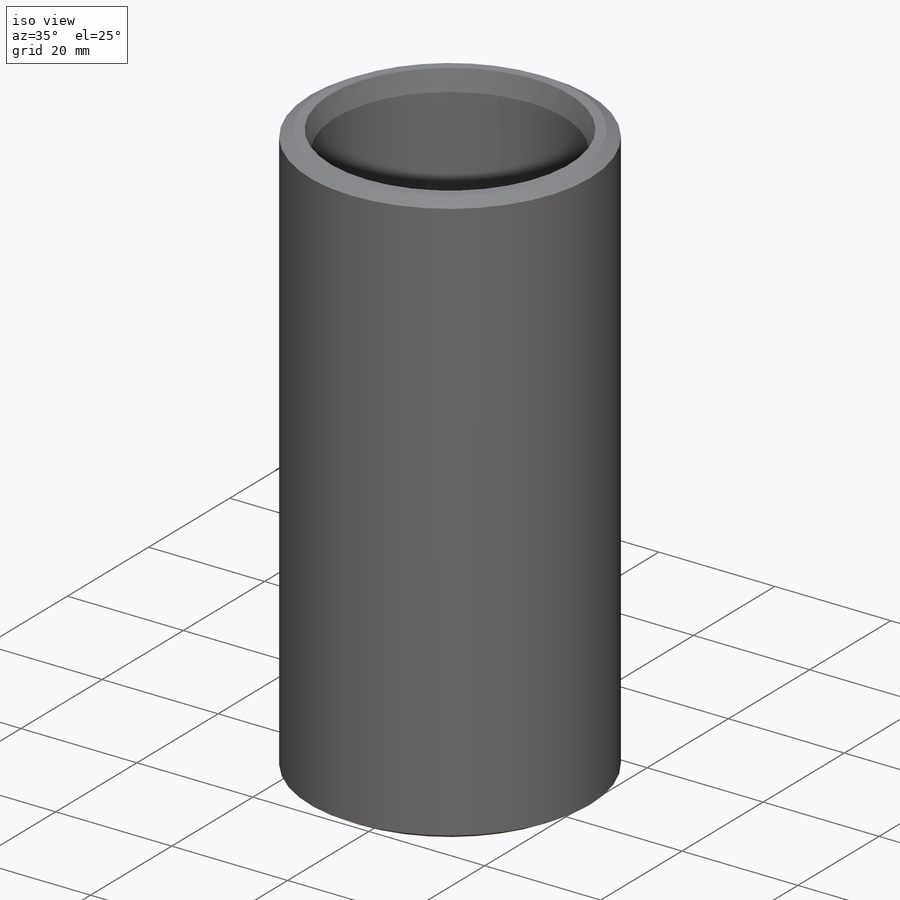
[diagram: iso view]
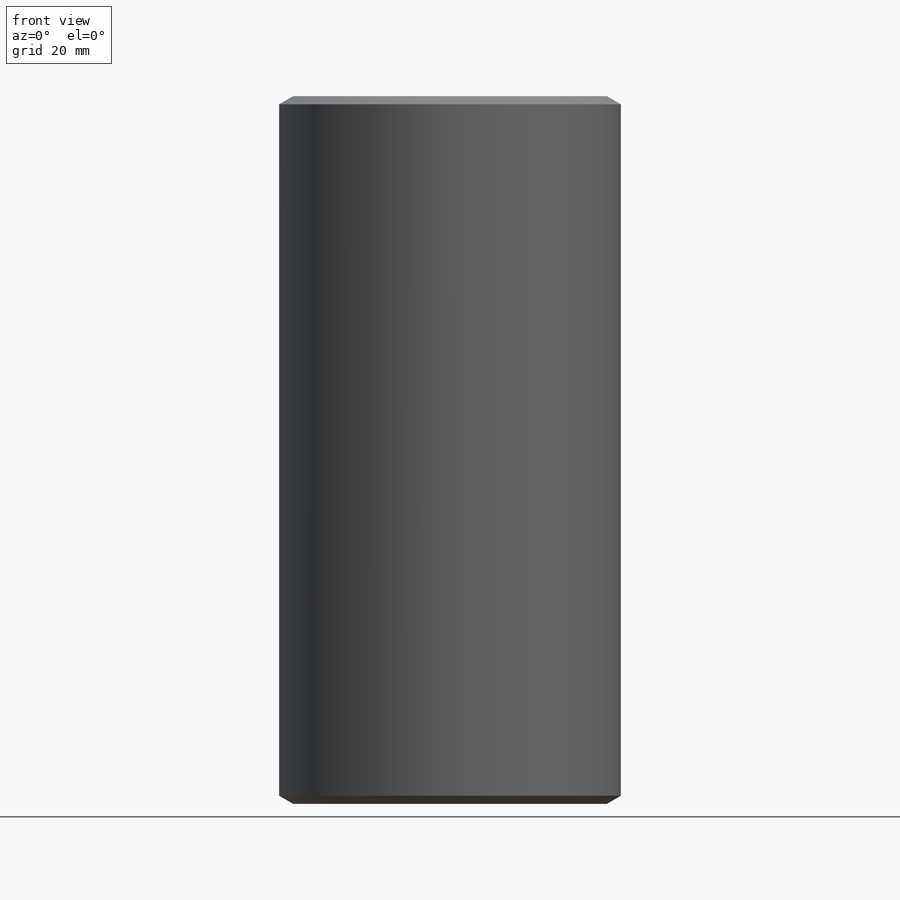
[diagram: front view]
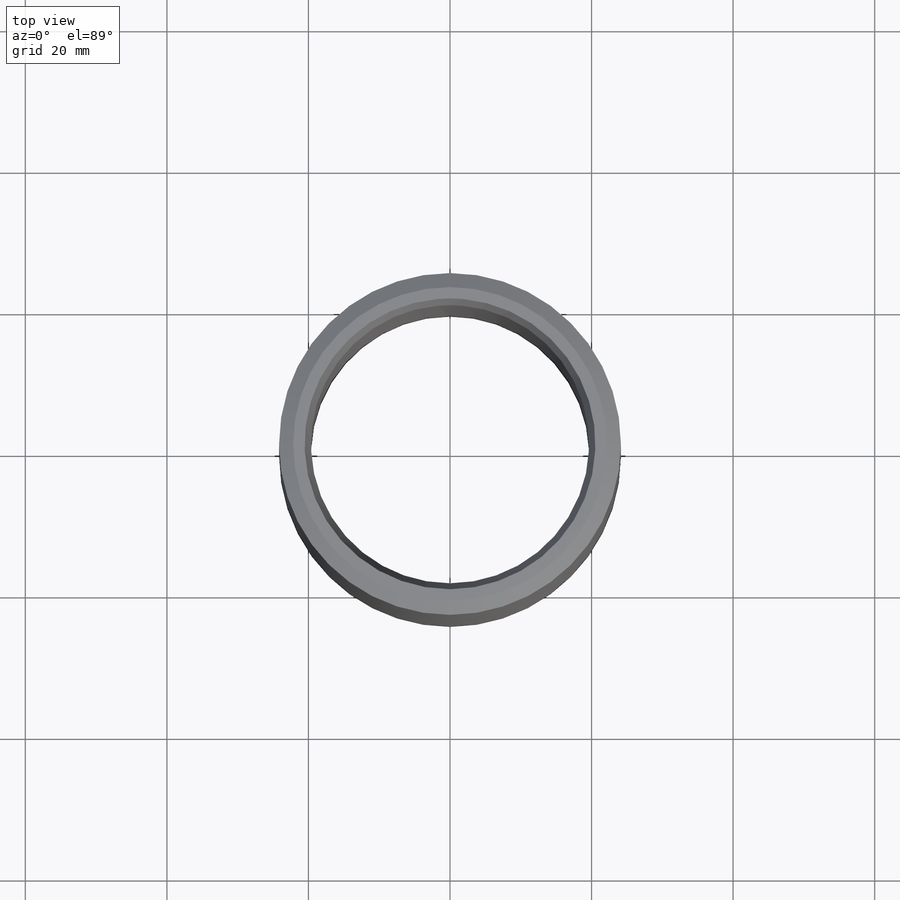
[diagram: top view]
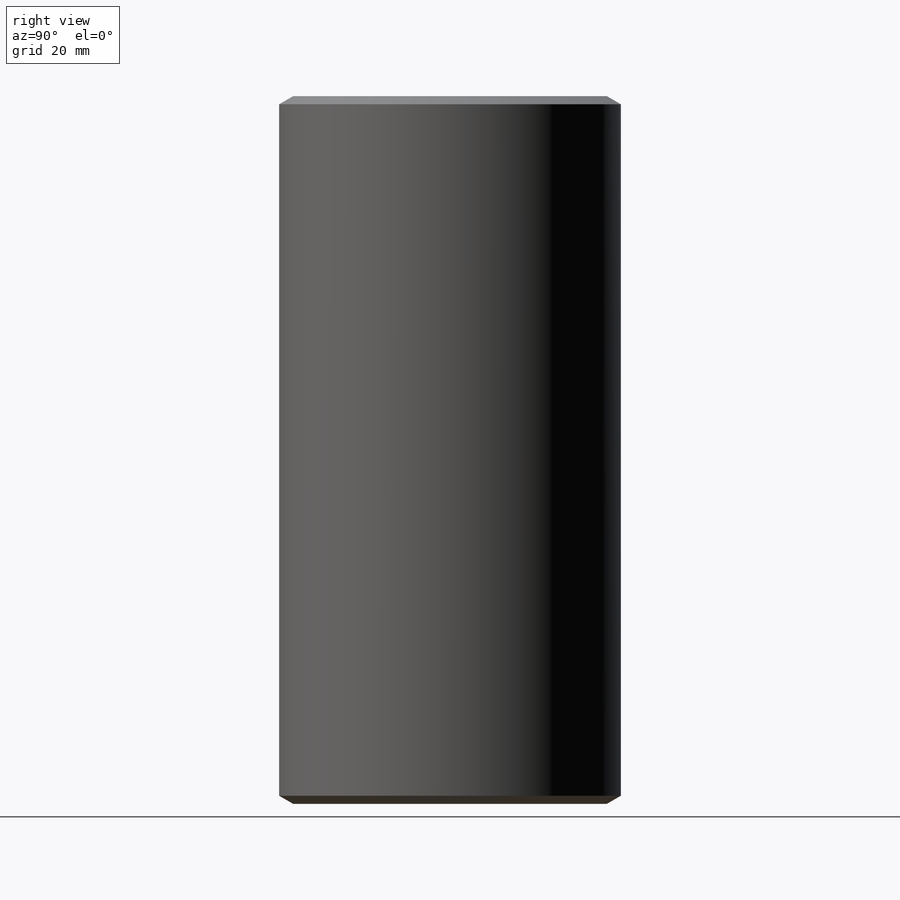
[diagram: right view]
SOLIDWORKS PART (.sldprt)
format: sldprt  version: not decoded by parser v0  size: 2,919,936 bytes
history: native  units: mm
features: sketch x6, cut_revolve x4, plane x3, material x1, extrude x1 (+8 scaffold rows collapsed)
feature tree (23):
  scaffold x8  (default folders/planes/origin — collapsed)
  material  "Material <nicht festgelegt>"
  plane  "Ebene vorne"
  plane  "Ebene oben"
  plane  "Ebene rechts"
  sketch  "Durchmesser/ WD"  dims[D1=114.3mm D2=3.6mm]
  extrude  "Aufsatz-Linear austragen1"  Depth=100mm
  sketch  "Achse"  dims[D1=~9.671417mm]
  sketch  "Sz Schweißfase 1"  dims[c1.D1=~1.417783mm c2.D1=30.0deg c2.D2=3.0mm c2.D3=1.6mm]
  sketch  "Sz WD Angleichung 1"  dims[c1.D1=~1.695458mm c2.D1=15.0deg]
  sketch  "Sz Schweißfase 2"  dims[c1.D1=~1.926638mm c2.D1=30.0deg c2.D2=1.6mm c2.D3=2.5mm c2.D4=~1.068336mm c3.D4=~151.69809deg c4.D4=~1.213382mm c5.D4=15.0deg]
  sketch  "Sz WD Angleichung 2"  dims[c1.D1=~1.215165mm c2.D1=15.0deg]
  cut_revolve  "Schweißfase 1"  Angle=360deg
  cut_revolve  "WD Angleichung 1"  Angle=360deg
  cut_revolve  "Schweißfase 2"  Angle=360deg
  cut_revolve  "WD Angleichung 2"  Angle=360deg
decode coverage: 11 of 11 modeling features carry decoded parameters
note: ~ marks probable driven/reference dimensions
note: suppression state not decoded; provenance and decode notes live in map.json
